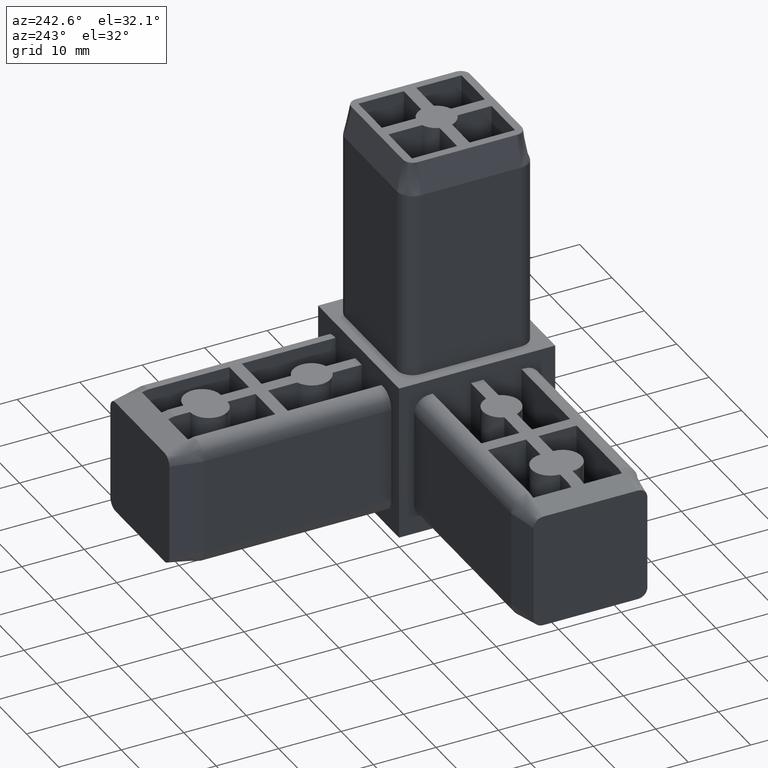
[diagram: clean part render]
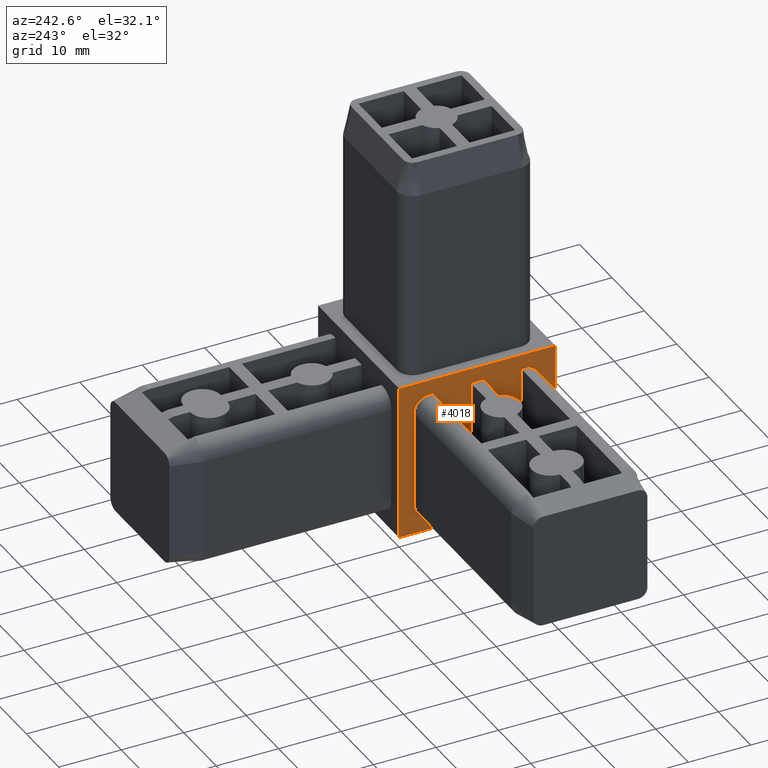
[diagram: same view with one face highlighted and labeled with its STEP entity id]
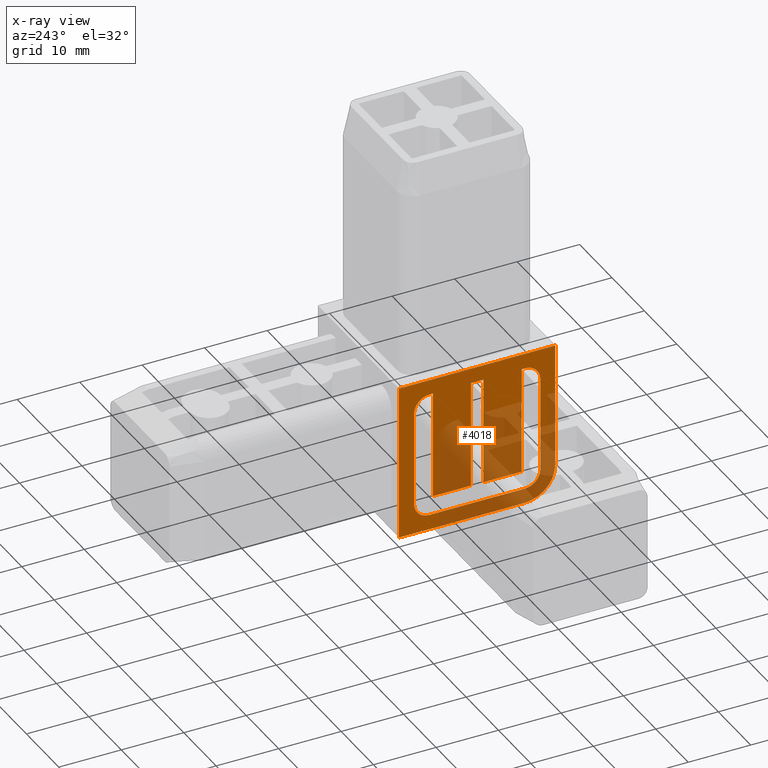
[diagram: x-ray of the same camera — body ghosted, the highlighted face saturated]
A machine part, auxiliary view. The second image highlights one B-rep face of the part: STEP entity #4018.
The next image is the same camera in x-ray: the body ghosted, the highlighted face saturated — about 46% of this face is hidden behind the body in this view.
In plain terms, the highlighted planar face has unit normal (-1, 0, 0).
Its self-contained STEP definition (entity closure, byte-faithful):
#7=CARTESIAN_POINT('',(0.0,-25.0,0.0));
#8=VERTEX_POINT('',#7);
#34=CARTESIAN_POINT('',(0.0,0.0,0.0));
#35=VERTEX_POINT('',#34);
#42=CARTESIAN_POINT('',(0.0,0.0,0.0));
#43=DIRECTION('',(0.0,-1.0,0.0));
#44=VECTOR('',#43,25.0);
#45=LINE('',#42,#44);
#46=EDGE_CURVE('',#35,#8,#45,.T.);
#204=CARTESIAN_POINT('',(0.0,-25.0,-20.0));
#205=VERTEX_POINT('',#204);
#206=CARTESIAN_POINT('',(0.0,-20.0,-25.0));
#207=VERTEX_POINT('',#206);
#208=CARTESIAN_POINT('',(0.0,-20.0,-20.0));
#209=DIRECTION('',(1.0,0.0,0.0));
#210=DIRECTION('',(0.0,-1.0,0.0));
#211=AXIS2_PLACEMENT_3D('',#208,#209,#210);
#212=CIRCLE('',#211,5.0);
#213=EDGE_CURVE('',#205,#207,#212,.T.);
#248=CARTESIAN_POINT('',(0.0,0.0,-25.0));
#249=VERTEX_POINT('',#248);
#258=CARTESIAN_POINT('',(0.0,0.0,-25.0));
#259=DIRECTION('',(0.0,-1.0,0.0));
#260=VECTOR('',#259,20.0);
#261=LINE('',#258,#260);
#262=EDGE_CURVE('',#249,#207,#261,.T.);
#289=CARTESIAN_POINT('',(0.0,-25.0,-20.0));
#290=DIRECTION('',(0.0,0.0,1.0));
#291=VECTOR('',#290,20.0);
#292=LINE('',#289,#291);
#293=EDGE_CURVE('',#205,#8,#292,.T.);
#1982=CARTESIAN_POINT('',(0.0,-2.400000000000091,-20.100000000000193));
#1983=VERTEX_POINT('',#1982);
#2000=CARTESIAN_POINT('',(0.0,-2.400000000000091,-4.900000000000091));
#2001=VERTEX_POINT('',#2000);
#2008=CARTESIAN_POINT('',(0.0,-2.400000000000091,-20.100000000000193));
#2009=DIRECTION('',(0.0,0.0,1.0));
#2010=VECTOR('',#2009,15.200000000000102);
#2011=LINE('',#2008,#2010);
#2012=EDGE_CURVE('',#1983,#2001,#2011,.T.);
#2098=CARTESIAN_POINT('',(0.0,-4.900000000000091,-22.600000000000193));
#2099=VERTEX_POINT('',#2098);
#2116=CARTESIAN_POINT('',(0.0,-4.900000000000091,-20.100000000000193));
#2117=DIRECTION('',(1.0,0.0,0.0));
#2118=DIRECTION('',(0.0,0.0,-1.0));
#2119=AXIS2_PLACEMENT_3D('',#2116,#2117,#2118);
#2120=CIRCLE('',#2119,2.500000000000000);
#2121=EDGE_CURVE('',#2099,#1983,#2120,.T.);
#2133=CARTESIAN_POINT('',(0.0,-20.100000000000136,-22.600000000000193));
#2134=VERTEX_POINT('',#2133);
#2148=CARTESIAN_POINT('',(0.0,-20.100000000000136,-22.600000000000193));
#2149=DIRECTION('',(0.0,1.0,0.0));
#2150=VECTOR('',#2149,15.200000000000045);
#2151=LINE('',#2148,#2150);
#2152=EDGE_CURVE('',#2134,#2099,#2151,.T.);
#2162=CARTESIAN_POINT('',(0.0,-22.600000000000136,-20.100000000000193));
#2163=VERTEX_POINT('',#2162);
#2164=CARTESIAN_POINT('',(0.0,-20.100000000000136,-20.100000000000193));
#2165=DIRECTION('',(-1.0,0.0,0.0));
#2166=DIRECTION('',(0.0,0.0,-1.0));
#2167=AXIS2_PLACEMENT_3D('',#2164,#2165,#2166);
#2168=CIRCLE('',#2167,2.500000000000000);
#2169=EDGE_CURVE('',#2134,#2163,#2168,.T.);
#2195=CARTESIAN_POINT('',(0.0,-22.600000000000136,-4.900000000000091));
#2196=VERTEX_POINT('',#2195);
#2197=CARTESIAN_POINT('',(0.0,-22.600000000000136,-20.100000000000193));
#2198=DIRECTION('',(0.0,0.0,1.0));
#2199=VECTOR('',#2198,15.200000000000102);
#2200=LINE('',#2197,#2199);
#2201=EDGE_CURVE('',#2163,#2196,#2200,.T.);
#2228=CARTESIAN_POINT('',(0.0,-20.100000000000136,-2.400000000000091));
#2229=VERTEX_POINT('',#2228);
#2244=CARTESIAN_POINT('',(0.0,-20.100000000000136,-4.900000000000091));
#2245=DIRECTION('',(1.0,0.0,0.0));
#2246=DIRECTION('',(0.0,0.0,1.0));
#2247=AXIS2_PLACEMENT_3D('',#2244,#2245,#2246);
#2248=CIRCLE('',#2247,2.500000000000000);
#2249=EDGE_CURVE('',#2229,#2196,#2248,.T.);
#2259=CARTESIAN_POINT('',(0.0,-4.900000000000091,-2.400000000000091));
#2260=VERTEX_POINT('',#2259);
#2374=CARTESIAN_POINT('',(0.0,-19.600000000000136,-2.400000000000091));
#2375=VERTEX_POINT('',#2374);
#2376=CARTESIAN_POINT('',(0.0,-20.100000000000136,-2.400000000000091));
#2377=DIRECTION('',(0.0,1.0,0.0));
#2378=VECTOR('',#2377,0.500000000000000);
#2379=LINE('',#2376,#2378);
#2380=EDGE_CURVE('',#2229,#2375,#2379,.T.);
#2415=CARTESIAN_POINT('',(0.0,-13.500000000000000,-2.400000000000091));
#2416=VERTEX_POINT('',#2415);
#2423=CARTESIAN_POINT('',(0.0,-11.500000000000114,-2.400000000000091));
#2424=VERTEX_POINT('',#2423);
#2425=CARTESIAN_POINT('',(0.0,-13.500000000000000,-2.400000000000091));
#2426=DIRECTION('',(0.0,1.0,0.0));
#2427=VECTOR('',#2426,1.999999999999886);
#2428=LINE('',#2425,#2427);
#2429=EDGE_CURVE('',#2416,#2424,#2428,.T.);
#2464=CARTESIAN_POINT('',(0.0,-5.400000000000205,-2.400000000000091));
#2465=VERTEX_POINT('',#2464);
#2472=CARTESIAN_POINT('',(0.0,-5.400000000000205,-2.400000000000091));
#2473=DIRECTION('',(0.0,1.0,0.0));
#2474=VECTOR('',#2473,0.500000000000114);
#2475=LINE('',#2472,#2474);
#2476=EDGE_CURVE('',#2465,#2260,#2475,.T.);
#2486=CARTESIAN_POINT('',(0.0,-4.900000000000091,-4.900000000000091));
#2487=DIRECTION('',(-1.0,0.0,0.0));
#2488=DIRECTION('',(0.0,0.0,1.0));
#2489=AXIS2_PLACEMENT_3D('',#2486,#2487,#2488);
#2490=CIRCLE('',#2489,2.500000000000000);
#2491=EDGE_CURVE('',#2260,#2001,#2490,.T.);
#3694=CARTESIAN_POINT('',(0.0,-13.500000000000000,-19.600000000000051));
#3695=VERTEX_POINT('',#3694);
#3696=CARTESIAN_POINT('',(0.0,-13.500000000000000,-2.400000000000091));
#3697=DIRECTION('',(0.0,0.0,-1.0));
#3698=VECTOR('',#3697,17.199999999999960);
#3699=LINE('',#3696,#3698);
#3700=EDGE_CURVE('',#2416,#3695,#3699,.T.);
#3798=CARTESIAN_POINT('',(0.0,-19.600000000000136,-19.600000000000051));
#3799=VERTEX_POINT('',#3798);
#3808=CARTESIAN_POINT('',(0.0,-19.600000000000136,-2.400000000000091));
#3809=DIRECTION('',(0.0,0.0,-1.0));
#3810=VECTOR('',#3809,17.199999999999960);
#3811=LINE('',#3808,#3810);
#3812=EDGE_CURVE('',#2375,#3799,#3811,.T.);
#3822=CARTESIAN_POINT('',(0.0,-19.600000000000136,-19.600000000000051));
#3823=DIRECTION('',(0.0,1.0,0.0));
#3824=VECTOR('',#3823,6.100000000000136);
#3825=LINE('',#3822,#3824);
#3826=EDGE_CURVE('',#3799,#3695,#3825,.T.);
#3875=CARTESIAN_POINT('',(0.0,-11.500000000000114,-19.600000000000051));
#3876=VERTEX_POINT('',#3875);
#3877=CARTESIAN_POINT('',(0.0,-11.500000000000114,-2.400000000000091));
#3878=DIRECTION('',(0.0,0.0,-1.0));
#3879=VECTOR('',#3878,17.199999999999960);
#3880=LINE('',#3877,#3879);
#3881=EDGE_CURVE('',#2424,#3876,#3880,.T.);
#3897=CARTESIAN_POINT('',(0.0,-5.400000000000205,-19.600000000000051));
#3898=VERTEX_POINT('',#3897);
#3899=CARTESIAN_POINT('',(0.0,-5.400000000000205,-2.400000000000091));
#3900=DIRECTION('',(0.0,0.0,-1.0));
#3901=VECTOR('',#3900,17.199999999999960);
#3902=LINE('',#3899,#3901);
#3903=EDGE_CURVE('',#2465,#3898,#3902,.T.);
#3971=CARTESIAN_POINT('',(0.0,-11.500000000000114,-19.600000000000051));
#3972=DIRECTION('',(0.0,1.0,0.0));
#3973=VECTOR('',#3972,6.099999999999909);
#3974=LINE('',#3971,#3973);
#3975=EDGE_CURVE('',#3876,#3898,#3974,.T.);
#3983=CARTESIAN_POINT('',(0.0,0.001099999972212,-25.001099999972212));
#3984=DIRECTION('',(-1.0,0.0,0.0));
#3985=DIRECTION('',(0.0,-1.0,0.0));
#3986=AXIS2_PLACEMENT_3D('',#3983,#3984,#3985);
#3987=PLANE('',#3986);
#3988=ORIENTED_EDGE('',*,*,#262,.T.);
#3989=ORIENTED_EDGE('',*,*,#213,.F.);
#3990=ORIENTED_EDGE('',*,*,#293,.T.);
#3991=ORIENTED_EDGE('',*,*,#46,.F.);
#3992=CARTESIAN_POINT('',(0.0,0.0,-25.0));
#3993=DIRECTION('',(0.0,0.0,1.0));
#3994=VECTOR('',#3993,25.0);
#3995=LINE('',#3992,#3994);
#3996=EDGE_CURVE('',#249,#35,#3995,.T.);
#3997=ORIENTED_EDGE('',*,*,#3996,.F.);
#3998=EDGE_LOOP('',(#3988,#3989,#3990,#3991,#3997));
#3999=FACE_OUTER_BOUND('',#3998,.T.);
#4000=ORIENTED_EDGE('',*,*,#3700,.T.);
#4001=ORIENTED_EDGE('',*,*,#3826,.F.);
#4002=ORIENTED_EDGE('',*,*,#3812,.F.);
#4003=ORIENTED_EDGE('',*,*,#2380,.F.);
#4004=ORIENTED_EDGE('',*,*,#2249,.T.);
#4005=ORIENTED_EDGE('',*,*,#2201,.F.);
#4006=ORIENTED_EDGE('',*,*,#2169,.F.);
#4007=ORIENTED_EDGE('',*,*,#2152,.T.);
#4008=ORIENTED_EDGE('',*,*,#2121,.T.);
#4009=ORIENTED_EDGE('',*,*,#2012,.T.);
#4010=ORIENTED_EDGE('',*,*,#2491,.F.);
#4011=ORIENTED_EDGE('',*,*,#2476,.F.);
#4012=ORIENTED_EDGE('',*,*,#3903,.T.);
#4013=ORIENTED_EDGE('',*,*,#3975,.F.);
#4014=ORIENTED_EDGE('',*,*,#3881,.F.);
#4015=ORIENTED_EDGE('',*,*,#2429,.F.);
#4016=EDGE_LOOP('',(#4000,#4001,#4002,#4003,#4004,#4005,#4006,#4007,#4008,#4009,#4010,#4011,#4012,#4013,#4014,#4015));
#4017=FACE_BOUND('',#4016,.T.);
#4018=ADVANCED_FACE('',(#3999,#4017),#3987,.T.);